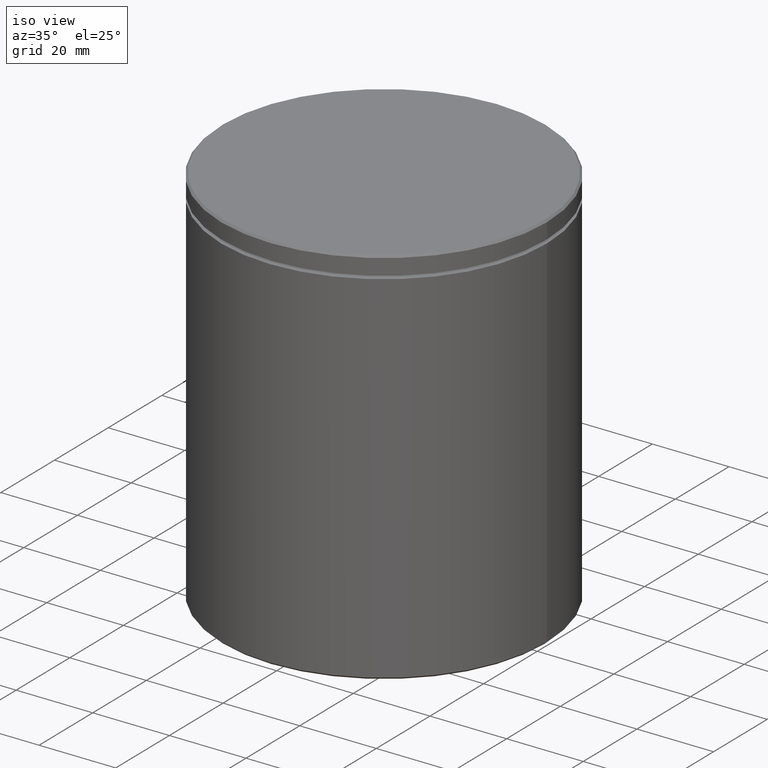
[diagram: clean part render]
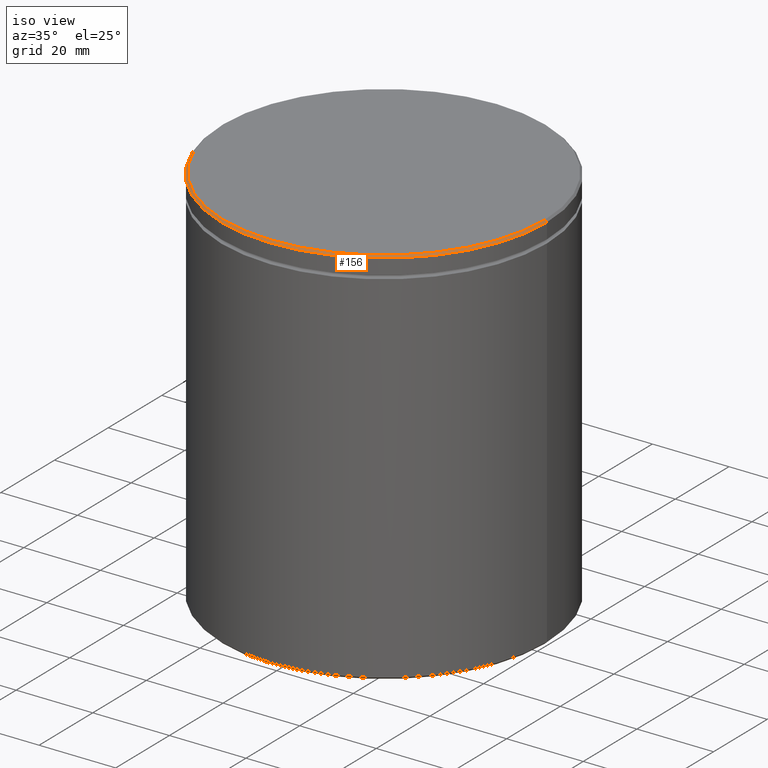
[diagram: same view with one face highlighted and labeled with its STEP entity id]
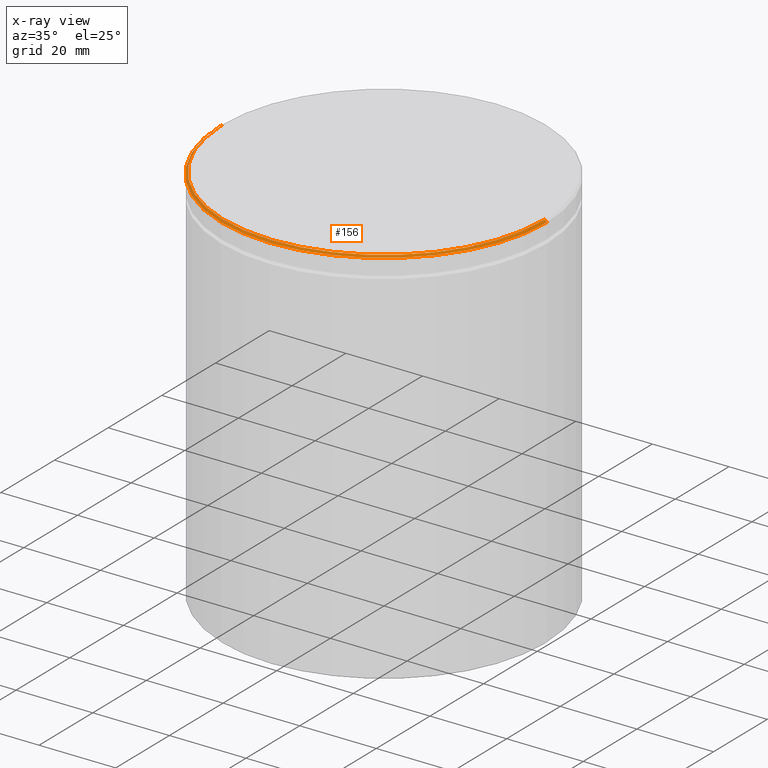
[diagram: x-ray of the same camera — body ghosted, the highlighted face saturated]
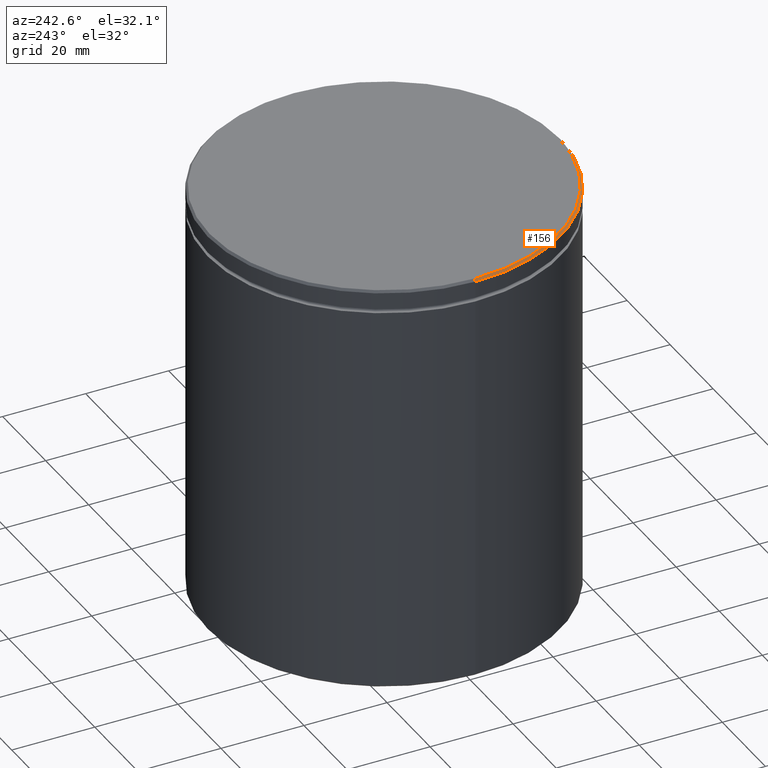
[diagram: same view with one face highlighted and labeled with its STEP entity id]
A machine part, iso view. The second image highlights one B-rep face of the part: STEP entity #156.
The next image is the same camera in x-ray: the body ghosted, the highlighted face saturated — about 0% of this face is hidden behind the body in this view.
A second angle (auxiliary view) of the same face is appended — the face is thin or edge-on in the first view.
In plain terms, the highlighted conical surface has half-angle 45 deg.
Its self-contained STEP definition (entity closure, byte-faithful):
#12 = DIRECTION ( 'NONE',  ( -0.7071067811865524577, 0.000000000000000000, -0.7071067811865426878 ) ) ;
#23 = VERTEX_POINT ( 'NONE', #241 ) ;
#38 = EDGE_CURVE ( 'NONE', #516, #23, #322, .T. ) ;
#60 = CARTESIAN_POINT ( 'NONE',  ( 41.99999999999999289, 5.143516556418882533E-15, 0.000000000000000000 ) ) ;
#77 = CARTESIAN_POINT ( 'NONE',  ( 0.000000000000000000, 0.000000000000000000, -0.5000000000000004441 ) ) ;
#156 = ADVANCED_FACE ( 'NONE', ( #424 ), #248, .T. ) ;
#175 = AXIS2_PLACEMENT_3D ( 'NONE', #469, #212, #203 ) ;
#182 = EDGE_CURVE ( 'NONE', #23, #334, #498, .T. ) ;
#202 = VECTOR ( 'NONE', #242, 1000.000000000000000 ) ;
#203 = DIRECTION ( 'NONE',  ( -1.000000000000000000, 0.000000000000000000, 0.000000000000000000 ) ) ;
#206 = CARTESIAN_POINT ( 'NONE',  ( 0.000000000000000000, 0.000000000000000000, 0.000000000000000000 ) ) ;
#212 = DIRECTION ( 'NONE',  ( 0.000000000000000000, 0.000000000000000000, -1.000000000000000000 ) ) ;
#220 = ORIENTED_EDGE ( 'NONE', *, *, #537, .T. ) ;
#241 = CARTESIAN_POINT ( 'NONE',  ( 42.50000000000000000, 0.000000000000000000, -0.5000000000000004441 ) ) ;
#242 = DIRECTION ( 'NONE',  ( 0.7071067811865524577, 8.659560562354994488E-17, -0.7071067811865426878 ) ) ;
#248 = CONICAL_SURFACE ( 'NONE', #175, 41.99999999999999289, 0.7853981633974552734 ) ;
#253 = ORIENTED_EDGE ( 'NONE', *, *, #182, .F. ) ;
#276 = LINE ( 'NONE', #446, #279 ) ;
#279 = VECTOR ( 'NONE', #12, 1000.000000000000000 ) ;
#297 = DIRECTION ( 'NONE',  ( -0.000000000000000000, -0.000000000000000000, 1.000000000000000000 ) ) ;
#304 = EDGE_CURVE ( 'NONE', #530, #516, #455, .T. ) ;
#322 = LINE ( 'NONE', #60, #202 ) ;
#334 = VERTEX_POINT ( 'NONE', #525 ) ;
#343 = AXIS2_PLACEMENT_3D ( 'NONE', #77, #515, #415 ) ;
#388 = DIRECTION ( 'NONE',  ( 1.000000000000000000, 0.000000000000000000, 0.000000000000000000 ) ) ;
#415 = DIRECTION ( 'NONE',  ( 1.000000000000000000, 0.000000000000000000, 0.000000000000000000 ) ) ;
#424 = FACE_OUTER_BOUND ( 'NONE', #539, .T. ) ;
#442 = ORIENTED_EDGE ( 'NONE', *, *, #304, .F. ) ;
#446 = CARTESIAN_POINT ( 'NONE',  ( -41.99999999999999289, 0.000000000000000000, 0.000000000000000000 ) ) ;
#455 = CIRCLE ( 'NONE', #534, 41.99999999999999289 ) ;
#469 = CARTESIAN_POINT ( 'NONE',  ( 0.000000000000000000, 0.000000000000000000, 0.000000000000000000 ) ) ;
#494 = CARTESIAN_POINT ( 'NONE',  ( -41.99999999999999289, 0.000000000000000000, 0.000000000000000000 ) ) ;
#498 = CIRCLE ( 'NONE', #343, 42.50000000000000000 ) ;
#515 = DIRECTION ( 'NONE',  ( 0.000000000000000000, 0.000000000000000000, -1.000000000000000000 ) ) ;
#516 = VERTEX_POINT ( 'NONE', #521 ) ;
#521 = CARTESIAN_POINT ( 'NONE',  ( 41.99999999999999289, 5.174132726397566320E-15, 0.000000000000000000 ) ) ;
#525 = CARTESIAN_POINT ( 'NONE',  ( -42.50000000000000000, 5.204748896376250896E-15, -0.5000000000000004441 ) ) ;
#530 = VERTEX_POINT ( 'NONE', #494 ) ;
#534 = AXIS2_PLACEMENT_3D ( 'NONE', #206, #297, #388 ) ;
#536 = ORIENTED_EDGE ( 'NONE', *, *, #38, .F. ) ;
#537 = EDGE_CURVE ( 'NONE', #530, #334, #276, .T. ) ;
#539 = EDGE_LOOP ( 'NONE', ( #536, #442, #220, #253 ) ) ;